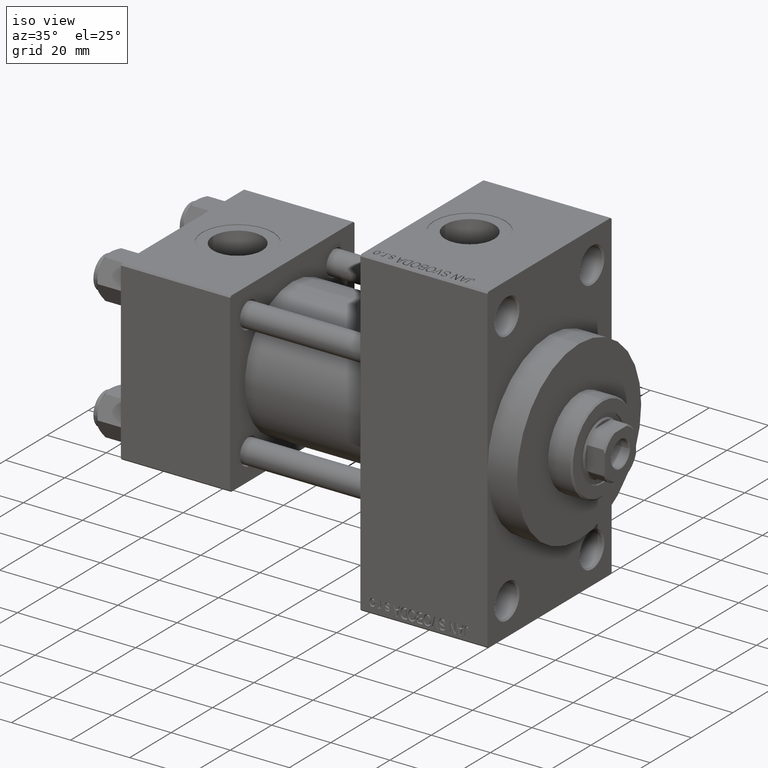
[diagram: clean part render]
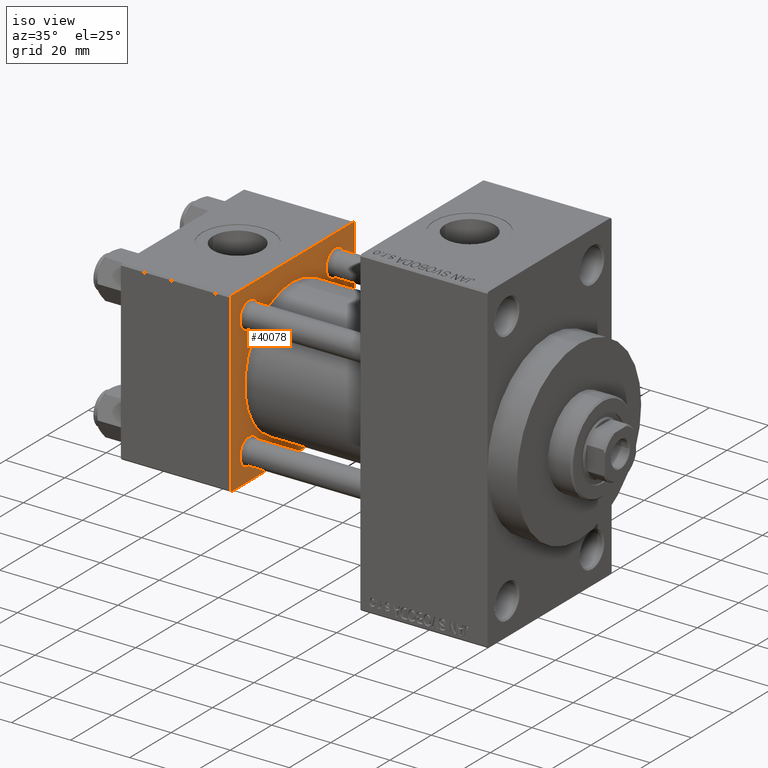
[diagram: same view with one face highlighted and labeled with its STEP entity id]
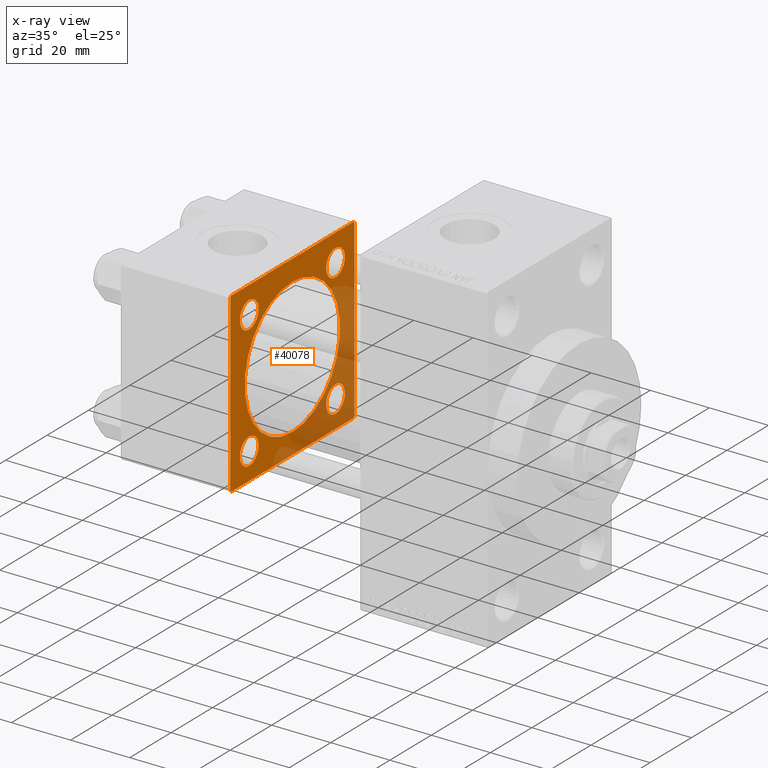
[diagram: x-ray of the same camera — body ghosted, the highlighted face saturated]
A machine part, iso view. The second image highlights one B-rep face of the part: STEP entity #40078.
The next image is the same camera in x-ray: the body ghosted, the highlighted face saturated — about 32% of this face is hidden behind the body in this view.
In plain terms, the highlighted planar face has unit normal (-1, 0, 0).
Its self-contained STEP definition (entity closure, byte-faithful):
#428 = CARTESIAN_POINT ( 'NONE',  ( 37.00000000000000000, 29.99999999999999289, -29.50000000000000000 ) ) ;
#546 = ORIENTED_EDGE ( 'NONE', *, *, #41650, .T. ) ;
#709 = VERTEX_POINT ( 'NONE', #45425 ) ;
#835 = DIRECTION ( 'NONE',  ( 0.000000000000000000, 0.000000000000000000, 1.000000000000000000 ) ) ;
#1035 = CARTESIAN_POINT ( 'NONE',  ( 37.00000000000000000, -20.84999999999999076, -16.35000000000002629 ) ) ;
#1108 = AXIS2_PLACEMENT_3D ( 'NONE', #35334, #24119, #35562 ) ;
#1132 = AXIS2_PLACEMENT_3D ( 'NONE', #5989, #17427, #32013 ) ;
#1172 = DIRECTION ( 'NONE',  ( -1.000000000000000000, 0.000000000000000000, -0.000000000000000000 ) ) ;
#1910 = AXIS2_PLACEMENT_3D ( 'NONE', #25054, #43200, #13815 ) ;
#2283 = EDGE_CURVE ( 'NONE', #36432, #41067, #41720, .T. ) ;
#2309 = VECTOR ( 'NONE', #11043, 1000.000000000000000 ) ;
#2902 = EDGE_CURVE ( 'NONE', #29024, #16927, #40220, .T. ) ;
#3062 = LINE ( 'NONE', #10465, #3805 ) ;
#3165 = DIRECTION ( 'NONE',  ( 0.000000000000000000, 0.000000000000000000, 1.000000000000000000 ) ) ;
#3220 = CARTESIAN_POINT ( 'NONE',  ( 37.00000000000000000, 29.99999999999999289, 29.50000000000000000 ) ) ;
#3319 = CARTESIAN_POINT ( 'NONE',  ( 37.00000000000000000, 20.84999999999999787, -16.35000000000002274 ) ) ;
#3388 = AXIS2_PLACEMENT_3D ( 'NONE', #28269, #17504, #3165 ) ;
#3420 = CIRCLE ( 'NONE', #1108, 4.499999999999976019 ) ;
#3805 = VECTOR ( 'NONE', #29083, 1000.000000000000114 ) ;
#4165 = CIRCLE ( 'NONE', #1910, 4.499999999999976019 ) ;
#4441 = CARTESIAN_POINT ( 'NONE',  ( 37.00000000000000000, 2.146024240737016609E-16, -23.00000000000000000 ) ) ;
#4520 = CARTESIAN_POINT ( 'NONE',  ( 37.00000000000000000, -20.84999999999999076, 20.85000000000000497 ) ) ;
#4591 = ORIENTED_EDGE ( 'NONE', *, *, #12788, .T. ) ;
#4643 = CARTESIAN_POINT ( 'NONE',  ( 37.00000000000000000, 20.84999999999999787, 25.34999999999997655 ) ) ;
#5989 = CARTESIAN_POINT ( 'NONE',  ( 37.00000000000000000, -20.84999999999999076, -20.85000000000000497 ) ) ;
#6559 = CARTESIAN_POINT ( 'NONE',  ( 37.00000000000000000, -30.00000000000000000, 29.49999999999999289 ) ) ;
#6936 = EDGE_CURVE ( 'NONE', #709, #16959, #38415, .T. ) ;
#7621 = DIRECTION ( 'NONE',  ( -1.000000000000000000, 0.000000000000000000, -0.000000000000000000 ) ) ;
#7868 = DIRECTION ( 'NONE',  ( 0.000000000000000000, 0.000000000000000000, 1.000000000000000000 ) ) ;
#7917 = AXIS2_PLACEMENT_3D ( 'NONE', #13312, #16424, #38185 ) ;
#8067 = FACE_BOUND ( 'NONE', #17624, .T. ) ;
#8138 = CARTESIAN_POINT ( 'NONE',  ( 37.00000000000000000, 29.99999999999999289, -29.50000000000000000 ) ) ;
#8306 = LINE ( 'NONE', #15702, #36160 ) ;
#8709 = CIRCLE ( 'NONE', #3388, 4.499999999999976019 ) ;
#8800 = EDGE_CURVE ( 'NONE', #30030, #43957, #15989, .T. ) ;
#8900 = EDGE_CURVE ( 'NONE', #16959, #17156, #3062, .T. ) ;
#9267 = FACE_BOUND ( 'NONE', #12949, .T. ) ;
#9466 = CIRCLE ( 'NONE', #31593, 4.499999999999976019 ) ;
#9495 = FACE_OUTER_BOUND ( 'NONE', #25099, .T. ) ;
#10435 = CARTESIAN_POINT ( 'NONE',  ( 37.00000000000000000, -2.602085213965210642E-15, 0.000000000000000000 ) ) ;
#10465 = CARTESIAN_POINT ( 'NONE',  ( 37.00000000000000000, -29.50000000000001066, -30.00000000000000711 ) ) ;
#10640 = ORIENTED_EDGE ( 'NONE', *, *, #2283, .F. ) ;
#10950 = CARTESIAN_POINT ( 'NONE',  ( 37.00000000000000000, -20.84999999999999076, -25.34999999999998010 ) ) ;
#11043 = DIRECTION ( 'NONE',  ( 0.000000000000000000, 0.000000000000000000, -1.000000000000000000 ) ) ;
#11052 = ORIENTED_EDGE ( 'NONE', *, *, #8900, .T. ) ;
#11576 = EDGE_CURVE ( 'NONE', #31310, #17683, #8709, .T. ) ;
#12051 = ORIENTED_EDGE ( 'NONE', *, *, #40027, .T. ) ;
#12299 = DIRECTION ( 'NONE',  ( 1.000000000000000000, -0.000000000000000000, 0.000000000000000000 ) ) ;
#12480 = EDGE_CURVE ( 'NONE', #14264, #45834, #35420, .T. ) ;
#12759 = EDGE_CURVE ( 'NONE', #43957, #30030, #3420, .T. ) ;
#12788 = EDGE_CURVE ( 'NONE', #16927, #29024, #4165, .T. ) ;
#12949 = EDGE_LOOP ( 'NONE', ( #12051, #37612 ) ) ;
#13312 = CARTESIAN_POINT ( 'NONE',  ( 37.00000000000000000, 0.000000000000000000, 0.000000000000000000 ) ) ;
#13346 = CIRCLE ( 'NONE', #1132, 4.499999999999976019 ) ;
#13627 = VECTOR ( 'NONE', #26939, 1000.000000000000000 ) ;
#13815 = DIRECTION ( 'NONE',  ( 0.000000000000000000, 0.000000000000000000, 1.000000000000000000 ) ) ;
#14264 = VERTEX_POINT ( 'NONE', #4643 ) ;
#14648 = LINE ( 'NONE', #40700, #30909 ) ;
#15702 = CARTESIAN_POINT ( 'NONE',  ( 37.00000000000000000, 29.49999999999999289, 30.00000000000000000 ) ) ;
#15989 = CIRCLE ( 'NONE', #33545, 4.499999999999976019 ) ;
#15992 = CARTESIAN_POINT ( 'NONE',  ( 37.00000000000000000, -20.84999999999999076, 25.34999999999998010 ) ) ;
#16424 = DIRECTION ( 'NONE',  ( -1.000000000000000000, 0.000000000000000000, -0.000000000000000000 ) ) ;
#16574 = CARTESIAN_POINT ( 'NONE',  ( 37.00000000000000000, -20.84999999999999076, 16.35000000000002629 ) ) ;
#16596 = ORIENTED_EDGE ( 'NONE', *, *, #32731, .F. ) ;
#16927 = VERTEX_POINT ( 'NONE', #3319 ) ;
#16959 = VERTEX_POINT ( 'NONE', #43224 ) ;
#17156 = VERTEX_POINT ( 'NONE', #30776 ) ;
#17283 = ORIENTED_EDGE ( 'NONE', *, *, #32949, .F. ) ;
#17427 = DIRECTION ( 'NONE',  ( -1.000000000000000000, 0.000000000000000000, -0.000000000000000000 ) ) ;
#17504 = DIRECTION ( 'NONE',  ( -1.000000000000000000, 0.000000000000000000, -0.000000000000000000 ) ) ;
#17624 = EDGE_LOOP ( 'NONE', ( #23281, #4591 ) ) ;
#17683 = VERTEX_POINT ( 'NONE', #1035 ) ;
#18303 = CARTESIAN_POINT ( 'NONE',  ( 37.00000000000000000, 20.84999999999999787, 16.35000000000002274 ) ) ;
#18655 = VECTOR ( 'NONE', #43340, 1000.000000000000114 ) ;
#18909 = ORIENTED_EDGE ( 'NONE', *, *, #6936, .T. ) ;
#19293 = DIRECTION ( 'NONE',  ( 0.000000000000000000, 0.000000000000000000, 1.000000000000000000 ) ) ;
#21126 = CARTESIAN_POINT ( 'NONE',  ( 37.00000000000000000, 29.49999999999999289, 30.00000000000000000 ) ) ;
#21837 = LINE ( 'NONE', #6559, #18655 ) ;
#22649 = FACE_BOUND ( 'NONE', #36553, .T. ) ;
#22753 = DIRECTION ( 'NONE',  ( -1.000000000000000000, 0.000000000000000000, -0.000000000000000000 ) ) ;
#22779 = DIRECTION ( 'NONE',  ( 0.000000000000000000, -1.000000000000000000, -1.156482317317871725E-16 ) ) ;
#22799 = ORIENTED_EDGE ( 'NONE', *, *, #41265, .T. ) ;
#22904 = CIRCLE ( 'NONE', #24406, 23.00000000000000000 ) ;
#23281 = ORIENTED_EDGE ( 'NONE', *, *, #2902, .T. ) ;
#23368 = FACE_BOUND ( 'NONE', #34761, .T. ) ;
#24119 = DIRECTION ( 'NONE',  ( -1.000000000000000000, 0.000000000000000000, -0.000000000000000000 ) ) ;
#24209 = DIRECTION ( 'NONE',  ( 0.000000000000000000, -1.000000000000000000, -1.156482317317871725E-16 ) ) ;
#24342 = VECTOR ( 'NONE', #44208, 999.9999999999998863 ) ;
#24406 = AXIS2_PLACEMENT_3D ( 'NONE', #33786, #12299, #835 ) ;
#24675 = CARTESIAN_POINT ( 'NONE',  ( 37.00000000000000000, 20.84999999999999787, -25.34999999999997655 ) ) ;
#25013 = DIRECTION ( 'NONE',  ( 1.000000000000000000, -0.000000000000000000, 0.000000000000000000 ) ) ;
#25054 = CARTESIAN_POINT ( 'NONE',  ( 37.00000000000000000, 20.84999999999999787, -20.85000000000000142 ) ) ;
#25099 = EDGE_LOOP ( 'NONE', ( #38805, #32552, #16596, #32548, #546, #22799, #18909, #11052 ) ) ;
#25575 = CARTESIAN_POINT ( 'NONE',  ( 37.00000000000000000, -29.49999999999998579, 29.99999999999999289 ) ) ;
#26094 = CARTESIAN_POINT ( 'NONE',  ( 37.00000000000000000, 20.84999999999999787, 20.85000000000000142 ) ) ;
#26917 = EDGE_CURVE ( 'NONE', #45288, #33497, #29169, .T. ) ;
#26939 = DIRECTION ( 'NONE',  ( 0.000000000000000000, 0.000000000000000000, -1.000000000000000000 ) ) ;
#27617 = CARTESIAN_POINT ( 'NONE',  ( 37.00000000000000000, -2.602085213965210642E-15, 23.00000000000000000 ) ) ;
#27668 = CARTESIAN_POINT ( 'NONE',  ( 37.00000000000000000, -30.00000000000000000, 29.99999999999999289 ) ) ;
#28269 = CARTESIAN_POINT ( 'NONE',  ( 37.00000000000000000, -20.84999999999999076, -20.85000000000000497 ) ) ;
#28275 = DIRECTION ( 'NONE',  ( 0.000000000000000000, 0.000000000000000000, 1.000000000000000000 ) ) ;
#28972 = CARTESIAN_POINT ( 'NONE',  ( 37.00000000000000000, 20.84999999999999787, -20.85000000000000142 ) ) ;
#29024 = VERTEX_POINT ( 'NONE', #24675 ) ;
#29083 = DIRECTION ( 'NONE',  ( 0.000000000000000000, 0.7071067811865474617, -0.7071067811865474617 ) ) ;
#29169 = LINE ( 'NONE', #8138, #24342 ) ;
#30030 = VERTEX_POINT ( 'NONE', #15992 ) ;
#30118 = VECTOR ( 'NONE', #24209, 1000.000000000000000 ) ;
#30239 = AXIS2_PLACEMENT_3D ( 'NONE', #10435, #25013, #32409 ) ;
#30776 = CARTESIAN_POINT ( 'NONE',  ( 37.00000000000000000, -29.50000000000000000, -30.00000000000000711 ) ) ;
#30909 = VECTOR ( 'NONE', #22779, 1000.000000000000000 ) ;
#31310 = VERTEX_POINT ( 'NONE', #10950 ) ;
#31593 = AXIS2_PLACEMENT_3D ( 'NONE', #36985, #7621, #19293 ) ;
#31830 = LINE ( 'NONE', #42814, #30118 ) ;
#32013 = DIRECTION ( 'NONE',  ( 0.000000000000000000, 0.000000000000000000, 1.000000000000000000 ) ) ;
#32409 = DIRECTION ( 'NONE',  ( 0.000000000000000000, 0.000000000000000000, 1.000000000000000000 ) ) ;
#32548 = ORIENTED_EDGE ( 'NONE', *, *, #40041, .T. ) ;
#32552 = ORIENTED_EDGE ( 'NONE', *, *, #26917, .T. ) ;
#32731 = EDGE_CURVE ( 'NONE', #38388, #33497, #36382, .T. ) ;
#32949 = EDGE_CURVE ( 'NONE', #41067, #36432, #22904, .T. ) ;
#33497 = VERTEX_POINT ( 'NONE', #428 ) ;
#33545 = AXIS2_PLACEMENT_3D ( 'NONE', #4520, #1172, #7868 ) ;
#33786 = CARTESIAN_POINT ( 'NONE',  ( 37.00000000000000000, -2.602085213965210642E-15, 0.000000000000000000 ) ) ;
#34014 = VERTEX_POINT ( 'NONE', #21126 ) ;
#34761 = EDGE_LOOP ( 'NONE', ( #10640, #17283 ) ) ;
#34979 = ORIENTED_EDGE ( 'NONE', *, *, #8800, .T. ) ;
#35334 = CARTESIAN_POINT ( 'NONE',  ( 37.00000000000000000, -20.84999999999999076, 20.85000000000000497 ) ) ;
#35420 = CIRCLE ( 'NONE', #42315, 4.499999999999976019 ) ;
#35562 = DIRECTION ( 'NONE',  ( 0.000000000000000000, 0.000000000000000000, 1.000000000000000000 ) ) ;
#36160 = VECTOR ( 'NONE', #41283, 1000.000000000000114 ) ;
#36382 = LINE ( 'NONE', #43767, #2309 ) ;
#36432 = VERTEX_POINT ( 'NONE', #27617 ) ;
#36553 = EDGE_LOOP ( 'NONE', ( #41431, #34979 ) ) ;
#36856 = DIRECTION ( 'NONE',  ( 0.000000000000000000, 0.000000000000000000, 1.000000000000000000 ) ) ;
#36985 = CARTESIAN_POINT ( 'NONE',  ( 37.00000000000000000, 20.84999999999999787, 20.85000000000000142 ) ) ;
#37612 = ORIENTED_EDGE ( 'NONE', *, *, #12480, .T. ) ;
#37804 = CARTESIAN_POINT ( 'NONE',  ( 37.00000000000000000, 29.49999999999997868, -30.00000000000000000 ) ) ;
#38185 = DIRECTION ( 'NONE',  ( -0.000000000000000000, 0.000000000000000000, 1.000000000000000000 ) ) ;
#38388 = VERTEX_POINT ( 'NONE', #3220 ) ;
#38415 = LINE ( 'NONE', #27668, #13627 ) ;
#38654 = PLANE ( 'NONE',  #7917 ) ;
#38805 = ORIENTED_EDGE ( 'NONE', *, *, #41863, .F. ) ;
#39477 = ORIENTED_EDGE ( 'NONE', *, *, #11576, .T. ) ;
#40025 = ORIENTED_EDGE ( 'NONE', *, *, #42180, .T. ) ;
#40027 = EDGE_CURVE ( 'NONE', #45834, #14264, #9466, .T. ) ;
#40041 = EDGE_CURVE ( 'NONE', #38388, #34014, #8306, .T. ) ;
#40078 = ADVANCED_FACE ( 'NONE', ( #44370, #8067, #22649, #9267, #23368, #9495 ), #38654, .F. ) ;
#40220 = CIRCLE ( 'NONE', #40958, 4.499999999999976019 ) ;
#40700 = CARTESIAN_POINT ( 'NONE',  ( 37.00000000000000000, 29.99999999999999289, 30.00000000000000000 ) ) ;
#40958 = AXIS2_PLACEMENT_3D ( 'NONE', #28972, #46869, #28275 ) ;
#41067 = VERTEX_POINT ( 'NONE', #4441 ) ;
#41265 = EDGE_CURVE ( 'NONE', #47160, #709, #21837, .T. ) ;
#41283 = DIRECTION ( 'NONE',  ( 0.000000000000000000, -0.7071067811865474617, 0.7071067811865474617 ) ) ;
#41431 = ORIENTED_EDGE ( 'NONE', *, *, #12759, .T. ) ;
#41650 = EDGE_CURVE ( 'NONE', #34014, #47160, #14648, .T. ) ;
#41720 = CIRCLE ( 'NONE', #30239, 23.00000000000000000 ) ;
#41863 = EDGE_CURVE ( 'NONE', #45288, #17156, #31830, .T. ) ;
#42180 = EDGE_CURVE ( 'NONE', #17683, #31310, #13346, .T. ) ;
#42260 = EDGE_LOOP ( 'NONE', ( #39477, #40025 ) ) ;
#42315 = AXIS2_PLACEMENT_3D ( 'NONE', #26094, #22753, #36856 ) ;
#42814 = CARTESIAN_POINT ( 'NONE',  ( 37.00000000000000000, 29.99999999999999289, -30.00000000000000000 ) ) ;
#43200 = DIRECTION ( 'NONE',  ( -1.000000000000000000, 0.000000000000000000, -0.000000000000000000 ) ) ;
#43224 = CARTESIAN_POINT ( 'NONE',  ( 37.00000000000000000, -30.00000000000000000, -29.50000000000001776 ) ) ;
#43340 = DIRECTION ( 'NONE',  ( -0.000000000000000000, -0.7071067811865474617, -0.7071067811865474617 ) ) ;
#43767 = CARTESIAN_POINT ( 'NONE',  ( 37.00000000000000000, 29.99999999999999289, 30.00000000000000000 ) ) ;
#43957 = VERTEX_POINT ( 'NONE', #16574 ) ;
#44208 = DIRECTION ( 'NONE',  ( -0.000000000000000000, 0.7071067811865574537, 0.7071067811865376918 ) ) ;
#44370 = FACE_BOUND ( 'NONE', #42260, .T. ) ;
#45288 = VERTEX_POINT ( 'NONE', #37804 ) ;
#45425 = CARTESIAN_POINT ( 'NONE',  ( 37.00000000000000000, -30.00000000000000000, 29.49999999999999289 ) ) ;
#45834 = VERTEX_POINT ( 'NONE', #18303 ) ;
#46869 = DIRECTION ( 'NONE',  ( -1.000000000000000000, 0.000000000000000000, -0.000000000000000000 ) ) ;
#47160 = VERTEX_POINT ( 'NONE', #25575 ) ;